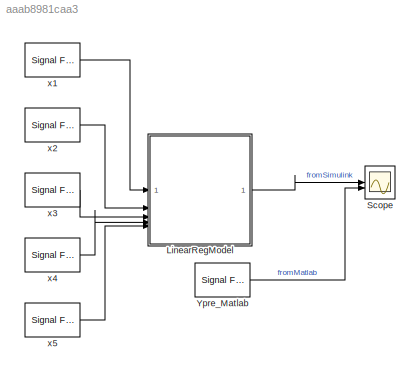
MODEL slx_aaab8981caa3
KIND model
CONFIG AbsTol = auto
CONFIG EnableMultiTasking = off
CONFIG FixedStep = auto
CONFIG MaxStep = auto
CONFIG MinStep = auto
CONFIG RelTol = 1e-3
CONFIG SampleTimeConstraint = Unconstrained
CONFIG SolverName = VariableStepAuto
CONFIG StartTime = 0.0
CONFIG StopTime = 10.0
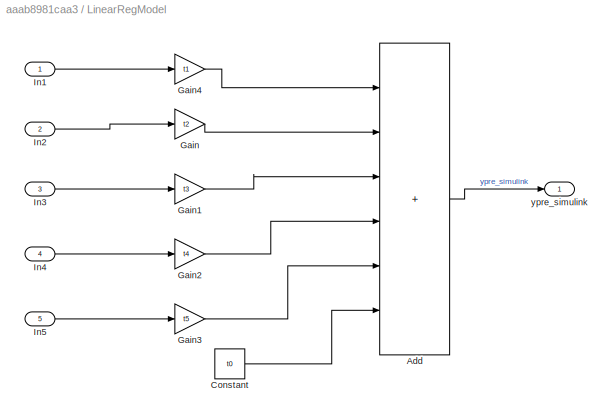
BLOCK [SubSystem] LinearRegModel
BLOCK [Sum] LinearRegModel/Add
  IconShape = rectangular
  Inputs = ++++++
  OutDataTypeStr = fixdt(0,24,3)
BLOCK [Constant] LinearRegModel/Constant
  OutDataTypeStr = fixdt(1,32,9)
  SampleTime = -1
  Value = t0
  VectorParams1D = off
BLOCK [Gain] LinearRegModel/Gain
  Gain = t2
BLOCK [Gain] LinearRegModel/Gain1
  Gain = t3
BLOCK [Gain] LinearRegModel/Gain2
  Gain = t4
BLOCK [Gain] LinearRegModel/Gain3
  Gain = t5
BLOCK [Gain] LinearRegModel/Gain4
  Gain = t1
BLOCK [Inport] LinearRegModel/In1
BLOCK [Inport] LinearRegModel/In2
  Port = 2
BLOCK [Inport] LinearRegModel/In3
  Port = 3
BLOCK [Inport] LinearRegModel/In4
  Port = 4
BLOCK [Inport] LinearRegModel/In5
  Port = 5
BLOCK [Outport] LinearRegModel/ypre_simulink
BLOCK [Scope] Scope
  Floating = off
  NumInputPorts = 2
  ScopeSpecificationString = Simulink.scopes.TimeScopeBlockCfg('CurrentConfiguration', extmgr.ConfigurationSet(extmgr.Configuration('Core','General UI',true),extmgr.Configuration('Core','Source UI',true),extmgr.Configuration('Sources','WiredSimulink',true),extmgr.Configuration('Visuals','Time Domain',true,'SerializedDisplays',{struct('MinYLimReal','-41789.79508','MaxYLimReal','5015361.19251','YLabelReal','','MinYLimMag','   0...<+1636ch>
BLOCK [Reference] Ypre_Matlab  REF=dspsrcs4/Signal From
Workspace
  SourceBlock = dspsrcs4/Signal From\nWorkspace
  SourceType = Signal From Workspace
BLOCK [Reference] x1  REF=dspsrcs4/Signal From
Workspace
  SourceBlock = dspsrcs4/Signal From\nWorkspace
  SourceType = Signal From Workspace
BLOCK [Reference] x2  REF=dspsrcs4/Signal From
Workspace
  SourceBlock = dspsrcs4/Signal From\nWorkspace
  SourceType = Signal From Workspace
BLOCK [Reference] x3  REF=dspsrcs4/Signal From
Workspace
  SourceBlock = dspsrcs4/Signal From\nWorkspace
  SourceType = Signal From Workspace
BLOCK [Reference] x4  REF=dspsrcs4/Signal From
Workspace
  SourceBlock = dspsrcs4/Signal From\nWorkspace
  SourceType = Signal From Workspace
BLOCK [Reference] x5  REF=dspsrcs4/Signal From
Workspace
  SourceBlock = dspsrcs4/Signal From\nWorkspace
  SourceType = Signal From Workspace
LINE LinearRegModel/Add:1 -> LinearRegModel/ypre_simulink:1
LINE LinearRegModel/Constant:1 -> LinearRegModel/Add:6
LINE LinearRegModel/Gain1:1 -> LinearRegModel/Add:3
LINE LinearRegModel/Gain2:1 -> LinearRegModel/Add:4
LINE LinearRegModel/Gain3:1 -> LinearRegModel/Add:5
LINE LinearRegModel/Gain4:1 -> LinearRegModel/Add:1
LINE LinearRegModel/Gain:1 -> LinearRegModel/Add:2
LINE LinearRegModel/In1:1 -> LinearRegModel/Gain4:1
LINE LinearRegModel/In2:1 -> LinearRegModel/Gain:1
LINE LinearRegModel/In3:1 -> LinearRegModel/Gain1:1
LINE LinearRegModel/In4:1 -> LinearRegModel/Gain2:1
LINE LinearRegModel/In5:1 -> LinearRegModel/Gain3:1
LINE LinearRegModel:1 -> Scope:1
LINE Ypre_Matlab:1 -> Scope:2
LINE x1:1 -> LinearRegModel:1
LINE x2:1 -> LinearRegModel:2
LINE x3:1 -> LinearRegModel:3
LINE x4:1 -> LinearRegModel:4
LINE x5:1 -> LinearRegModel:5
